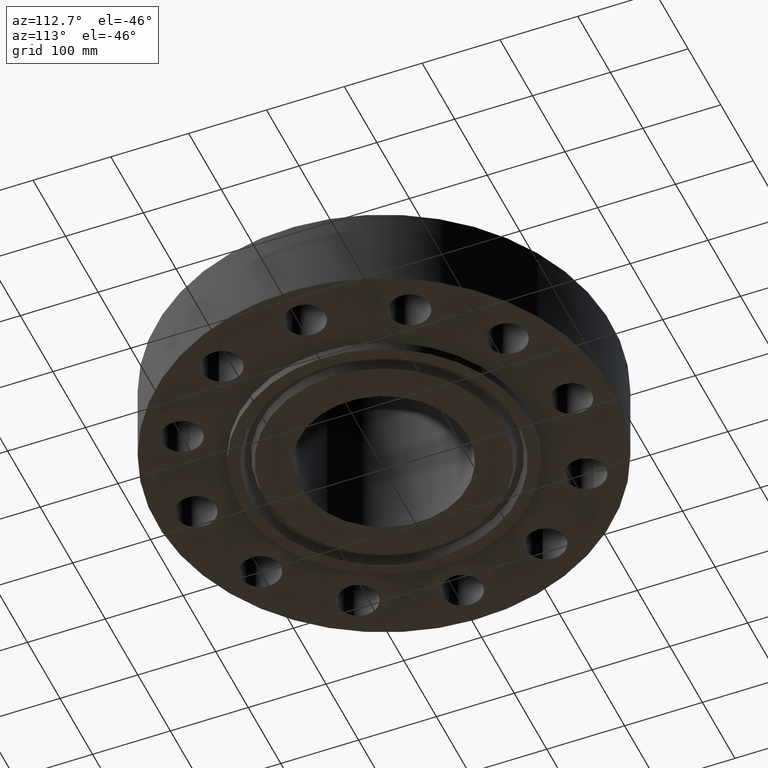
[diagram: clean part render]
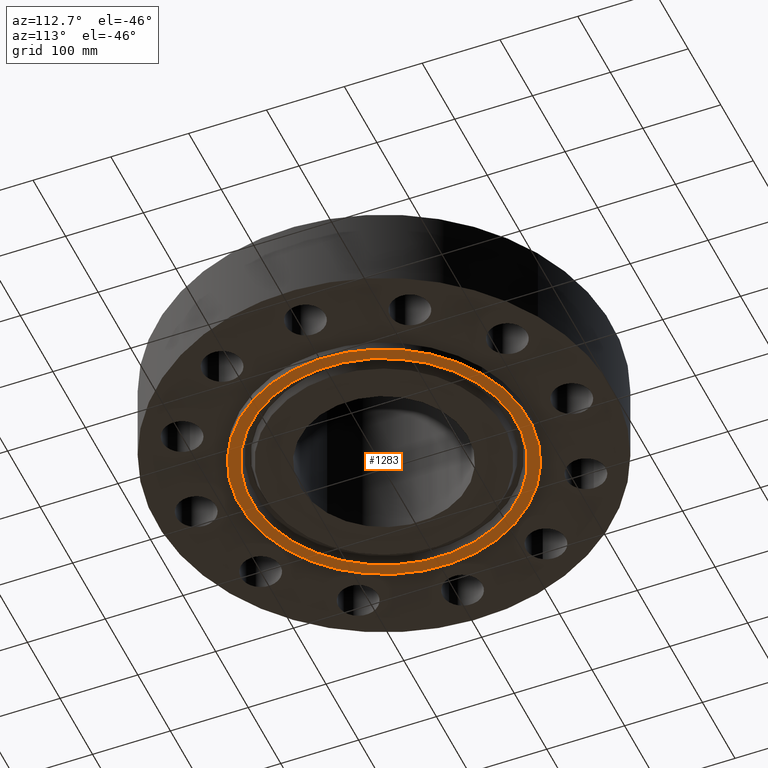
[diagram: same view with one face highlighted and labeled with its STEP entity id]
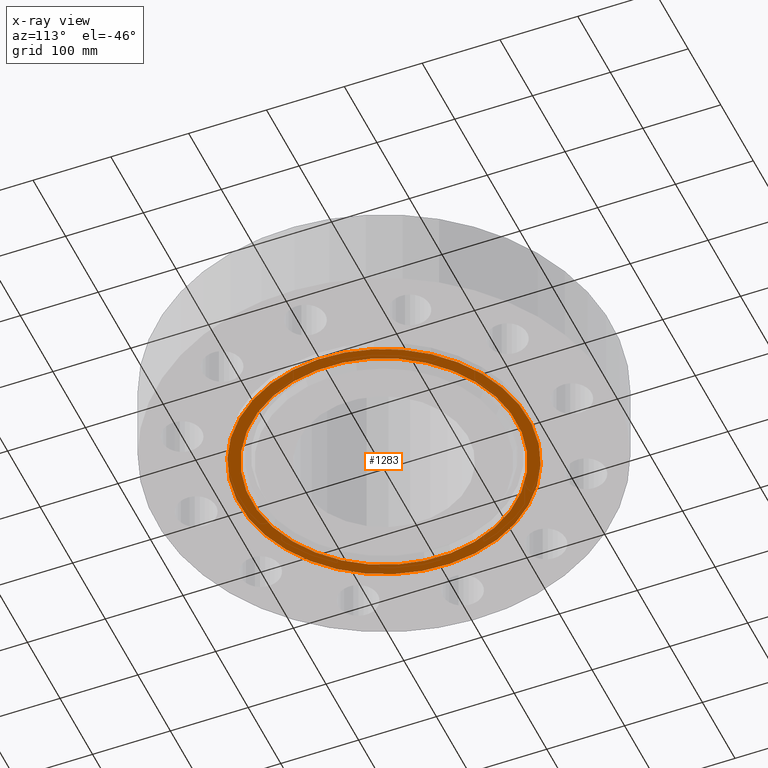
[diagram: x-ray of the same camera — body ghosted, the highlighted face saturated]
A machine part, auxiliary view. The second image highlights one B-rep face of the part: STEP entity #1283.
The next image is the same camera in x-ray: the body ghosted, the highlighted face saturated — about 0% of this face is hidden behind the body in this view.
In plain terms, the highlighted planar face has unit normal (0, 0, -1).
Its self-contained STEP definition (entity closure, byte-faithful):
#517=AXIS2_PLACEMENT_3D('Circle Axis2P3D',#515,#516,$) ;
#552=AXIS2_PLACEMENT_3D('Circle Axis2P3D',#550,#551,$) ;
#1259=AXIS2_PLACEMENT_3D('Plane Axis2P3D',#1256,#1257,#1258) ;
#1267=AXIS2_PLACEMENT_3D('Circle Axis2P3D',#1265,#1266,$) ;
#1276=AXIS2_PLACEMENT_3D('Circle Axis2P3D',#1274,#1275,$) ;
#515=CARTESIAN_POINT('Axis2P3D Location',(0.,0.,-0.438000000002)) ;
#519=CARTESIAN_POINT('Vertex',(-3.50579925106,-6.41732248385,-0.438000000002)) ;
#521=CARTESIAN_POINT('Vertex',(3.50579925106,6.41732248385,-0.438000000002)) ;
#550=CARTESIAN_POINT('Axis2P3D Location',(0.,0.,-0.438000000002)) ;
#1256=CARTESIAN_POINT('Axis2P3D Location',(0.,4.25000000002,-0.438000000002)) ;
#1265=CARTESIAN_POINT('Axis2P3D Location',(0.,5.59482469102E-016,-0.438000000002)) ;
#1269=CARTESIAN_POINT('Vertex',(3.21358938528,-5.88243591237,-0.438000000002)) ;
#1271=CARTESIAN_POINT('Vertex',(-3.21358938528,5.88243591237,-0.438000000002)) ;
#1274=CARTESIAN_POINT('Axis2P3D Location',(-5.59482469102E-016,-5.59482469102E-016,-0.438000000002)) ;
#516=DIRECTION('Axis2P3D Direction',(0.,0.,-0.0393700787402)) ;
#551=DIRECTION('Axis2P3D Direction',(0.,0.,-0.0393700787402)) ;
#1257=DIRECTION('Axis2P3D Direction',(0.,0.,-0.0393700787402)) ;
#1258=DIRECTION('Axis2P3D XDirection',(0.0393700787402,0.,0.)) ;
#1266=DIRECTION('Axis2P3D Direction',(0.,0.,-0.0393700787402)) ;
#1275=DIRECTION('Axis2P3D Direction',(0.,0.,-0.0393700787402)) ;
#1262=ORIENTED_EDGE('',*,*,#523,.T.) ;
#1263=ORIENTED_EDGE('',*,*,#554,.T.) ;
#1280=ORIENTED_EDGE('',*,*,#1273,.F.) ;
#1281=ORIENTED_EDGE('',*,*,#1278,.F.) ;
#1282=FACE_BOUND('',#1279,.T.) ;
#1283=ADVANCED_FACE('PartBody',(#1264,#1282),#1260,.T.) ;
#518=CIRCLE('generated circle',#517,7.31250000003) ;
#553=CIRCLE('generated circle',#552,7.31250000003) ;
#1268=CIRCLE('generated circle',#1267,6.70300000003) ;
#1277=CIRCLE('generated circle',#1276,6.70300000003) ;
#523=EDGE_CURVE('',#520,#522,#518,.T.) ;
#554=EDGE_CURVE('',#522,#520,#553,.T.) ;
#1273=EDGE_CURVE('',#1270,#1272,#1268,.T.) ;
#1278=EDGE_CURVE('',#1272,#1270,#1277,.T.) ;
#1261=EDGE_LOOP('',(#1262,#1263)) ;
#1279=EDGE_LOOP('',(#1280,#1281)) ;
#1264=FACE_OUTER_BOUND('',#1261,.T.) ;
#1260=PLANE('',#1259) ;
#520=VERTEX_POINT('',#519) ;
#522=VERTEX_POINT('',#521) ;
#1270=VERTEX_POINT('',#1269) ;
#1272=VERTEX_POINT('',#1271) ;